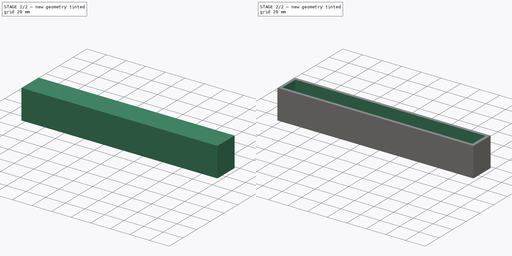
[diagram: build sequence overview — one tinted view per stage of 2, left to right]
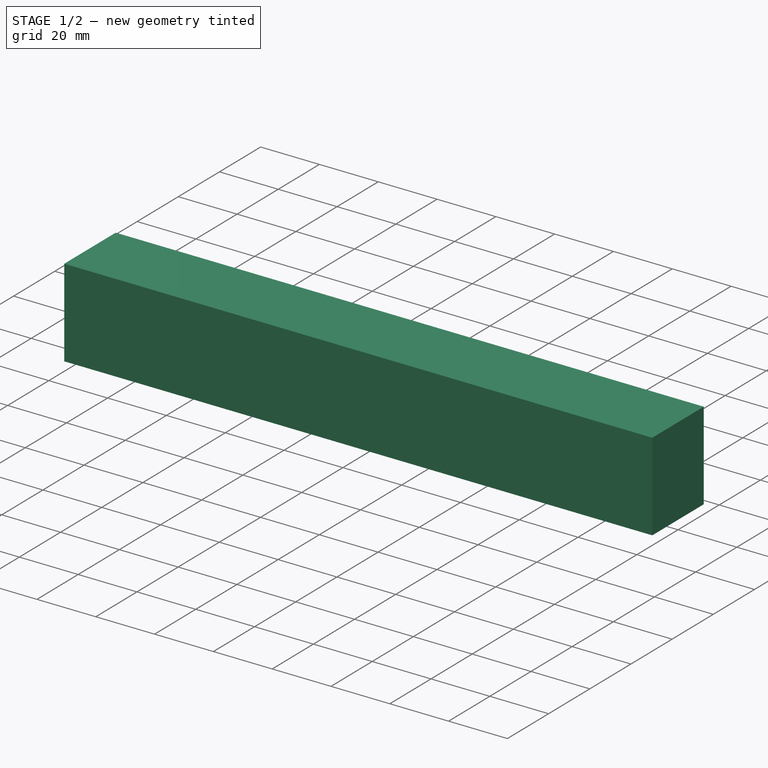
[diagram: stage 1 of 2 — iso view after this stage's code; geometry added in this stage tinted green]
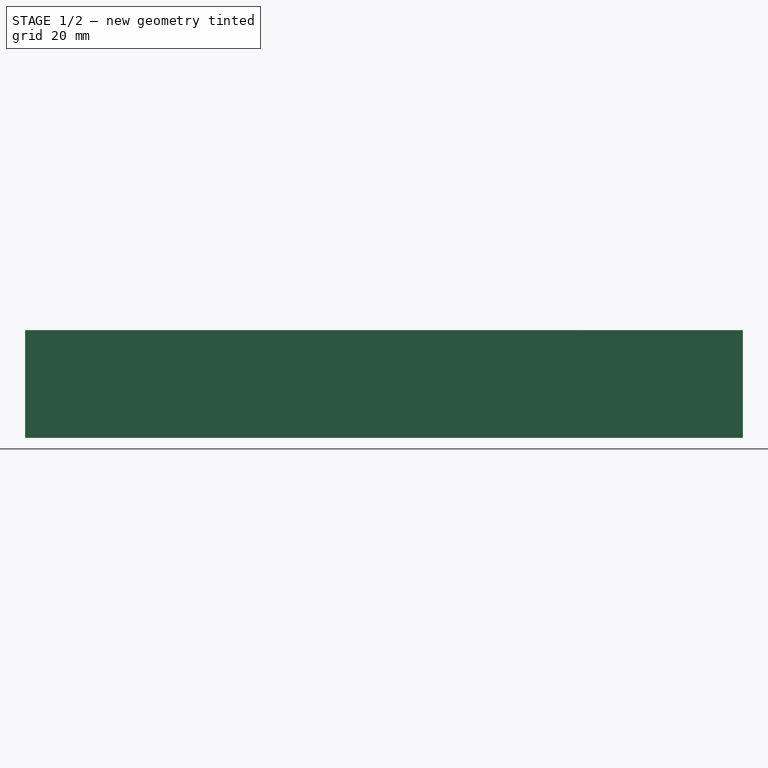
[diagram: stage 1 of 2 — front view after this stage's code; geometry added in this stage tinted green]
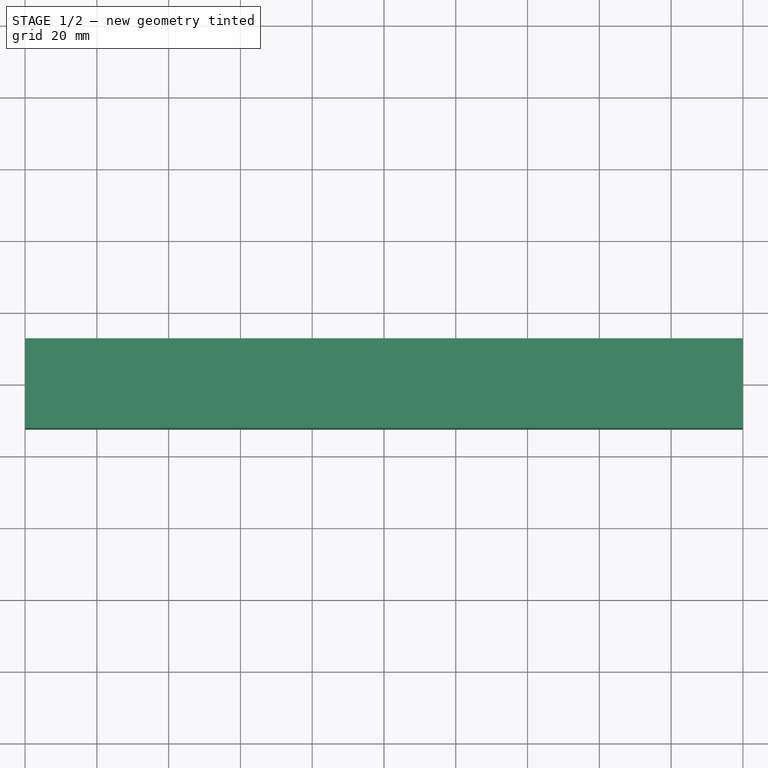
[diagram: stage 1 of 2 — top view after this stage's code; geometry added in this stage tinted green]
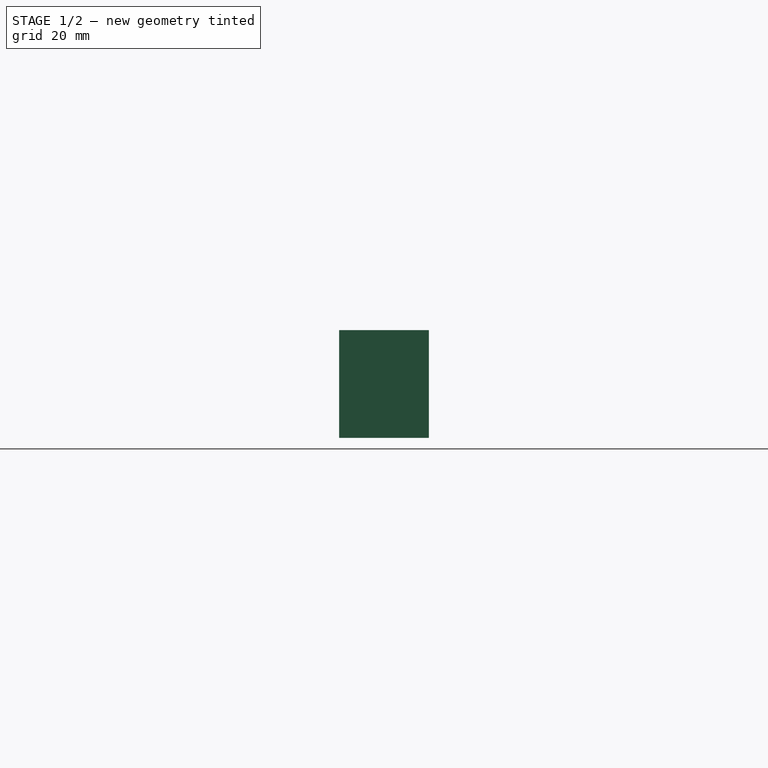
[diagram: stage 1 of 2 — right view after this stage's code; geometry added in this stage tinted green]
FCSTD DOCUMENT  (FreeCAD 0.21R33771 (Git))
Label: parameterDemo
License: All rights reserved
LicenseURL: http://en.wikipedia.org/wiki/All_rights_reserved
objects: Sketcher::SketchObject×2, Spreadsheet::Sheet×1, PartDesign::Pad×1, PartDesign::Plane×1, PartDesign::Pocket×1, PartDesign::Body×1
note: 8 computed .brp shape members not serialized (recipe doc carries the construction recipe); baked Part::Feature solids carry a one-line shape summary decoded from their .brp

FEATURE [Spreadsheet::Sheet] Spreadsheet  label="ss"
  cells = A2='boxLen; B2(boxLen)=200; A3='boxWid; B3(boxWid)=25; A4='boxHt; B4(boxHt)=30; A5='wallThk; B5(wallThk)=3; A6='baseThk; B6(baseThk)=4
FEATURE [Sketcher::SketchObject] Sketch
  FullyConstrained = true
  MapMode = 5
  Support = -> [XY_Plane]
  expr: Constraints[10] = <<ss>>.boxWid
  expr: Constraints[9] = <<ss>>.boxLen
  sketch-geometry (4):
    g0: LineSegment StartX=-100 StartY=12.5 StartZ=0 EndX=100 EndY=12.5 EndZ=0
    g1: LineSegment StartX=100 StartY=12.5 StartZ=0 EndX=100 EndY=-12.5 EndZ=0
    g2: LineSegment StartX=100 StartY=-12.5 StartZ=0 EndX=-100 EndY=-12.5 EndZ=0
    g3: LineSegment StartX=-100 StartY=-12.5 StartZ=0 EndX=-100 EndY=12.5 EndZ=0
  constraints (11):
    c: Coincident(g0,g1)
    c: Coincident(g1,g2)
    c: Coincident(g2,g3)
    c: Coincident(g3,g0)
    c: Horizontal(g0)
    c: Horizontal(g2)
    c: Vertical(g1)
    c: Vertical(g3)
    c: Symmetric(g0,g2,g-1)
    c: Distance(g0) = 200
    c: Distance(g3) = 25
FEATURE [PartDesign::Pad] Pad
  Direction = (0,0,1)
  Length = 30
  Length2 = 10
  Profile = -> Sketch
  ReferenceAxis = -> Sketch [N_Axis]
  Type = 0
  expr: Length = <<ss>>.boxHt
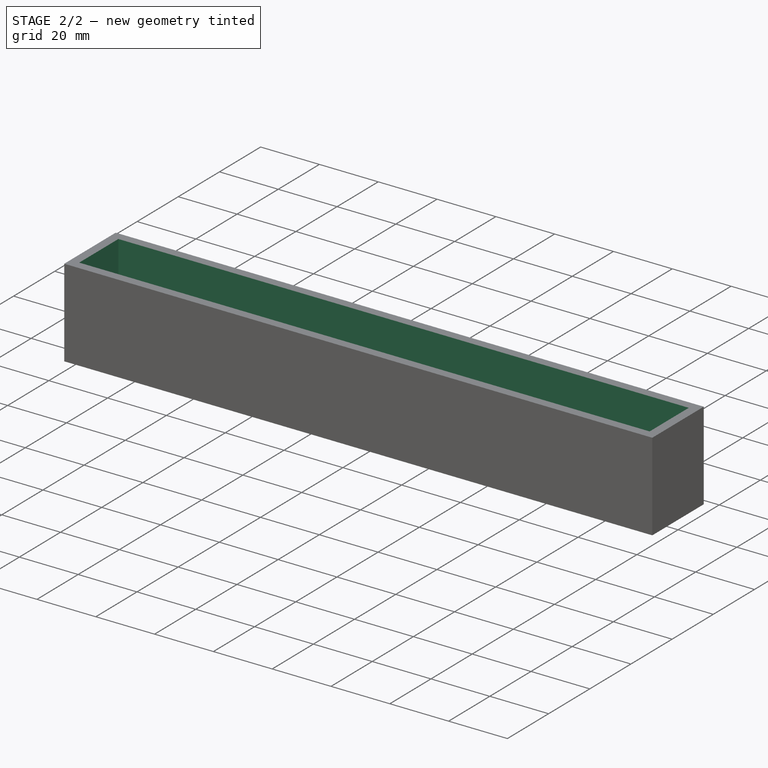
[diagram: stage 2 of 2 — iso view after this stage's code; geometry added in this stage tinted green]
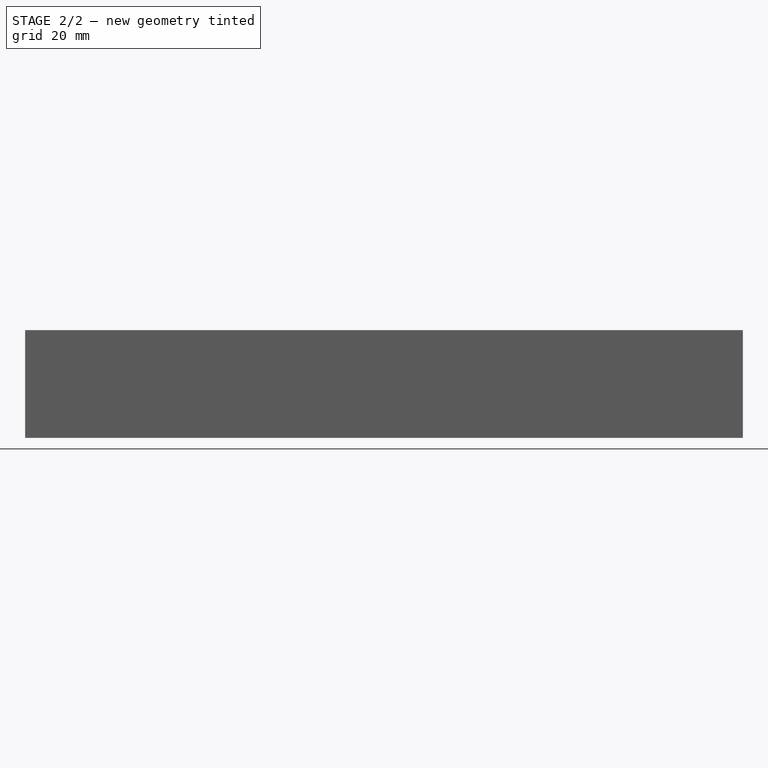
[diagram: stage 2 of 2 — front view after this stage's code; geometry added in this stage tinted green]
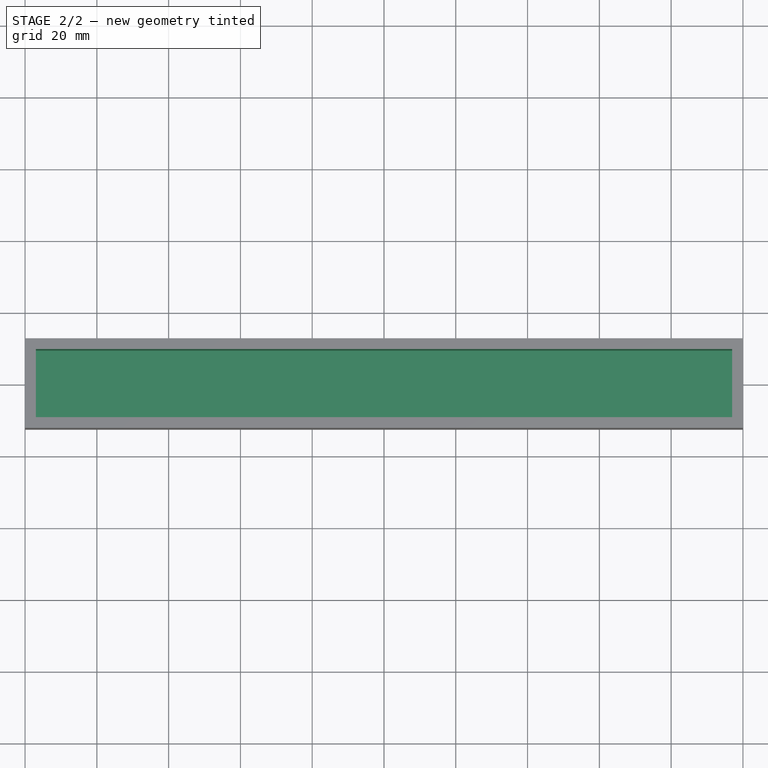
[diagram: stage 2 of 2 — top view after this stage's code; geometry added in this stage tinted green]
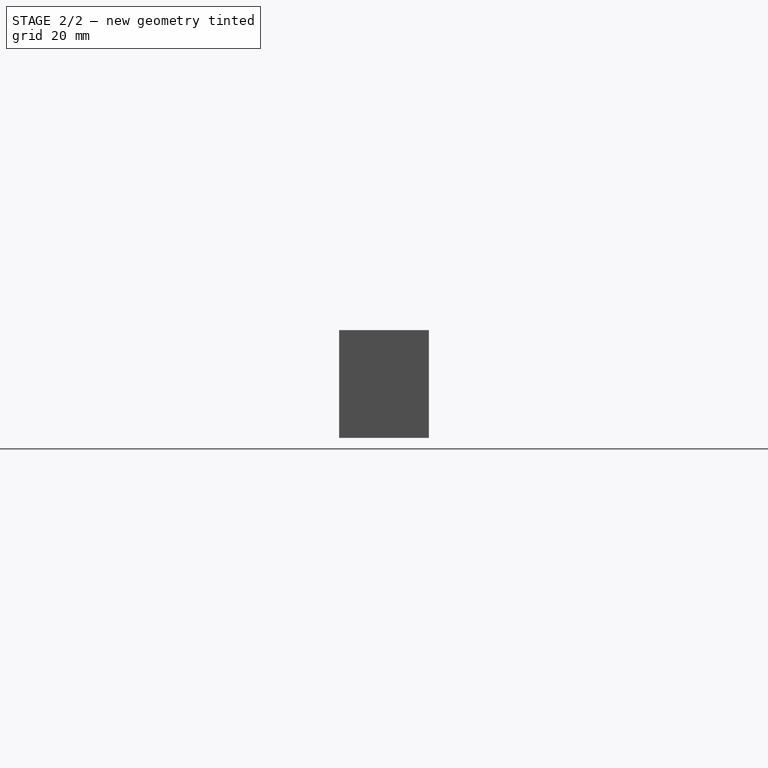
[diagram: stage 2 of 2 — right view after this stage's code; geometry added in this stage tinted green]
FEATURE [PartDesign::Plane] DatumPlane
  AttachmentOffset = pos=(0,0,30) rot=(0,0,1;0rad)
  Length = 220
  MapMode = 5
  Placement = pos=(0,0,30) rot=(0,0,1;0rad)
  ResizeMode = 0
  Support = -> [XY_Plane]
  Width = 70
  expr: .AttachmentOffset.Base.z = <<ss>>.boxHt
FEATURE [Sketcher::SketchObject] Sketch001
  FullyConstrained = true
  MapMode = 5
  Placement = pos=(0,0,30) rot=(0,0,1;0rad)
  Support = -> [DatumPlane]
  expr: Constraints[10] = <<ss>>.boxWid - <<ss>>.wallThk * 2
  expr: Constraints[9] = <<ss>>.boxLen - <<ss>>.wallThk * 2
  sketch-geometry (4):
    g0: LineSegment StartX=-97 StartY=9.5 StartZ=0 EndX=97 EndY=9.5 EndZ=0
    g1: LineSegment StartX=97 StartY=9.5 StartZ=0 EndX=97 EndY=-9.5 EndZ=0
    g2: LineSegment StartX=97 StartY=-9.5 StartZ=0 EndX=-97 EndY=-9.5 EndZ=0
    g3: LineSegment StartX=-97 StartY=-9.5 StartZ=0 EndX=-97 EndY=9.5 EndZ=0
  constraints (11):
    c: Coincident(g0,g1)
    c: Coincident(g1,g2)
    c: Coincident(g2,g3)
    c: Coincident(g3,g0)
    c: Horizontal(g0)
    c: Horizontal(g2)
    c: Vertical(g1)
    c: Vertical(g3)
    c: Symmetric(g0,g2,g-1)
    c: Distance(g0) = 194
    c: Distance(g3) = 19
FEATURE [PartDesign::Pocket] Pocket
  BaseFeature = -> Pad
  Direction = (0,0,-1)
  Length = 26
  Length2 = 5
  Profile = -> Sketch001
  ReferenceAxis = -> Sketch001 [N_Axis]
  Type = 0
  expr: Length = <<ss>>.boxHt - <<ss>>.baseThk
FEATURE [PartDesign::Body] Body
  Group = -> [Sketch,Pad,DatumPlane,Sketch001,Pocket]
  Origin = -> Origin
  Tip = -> Pocket
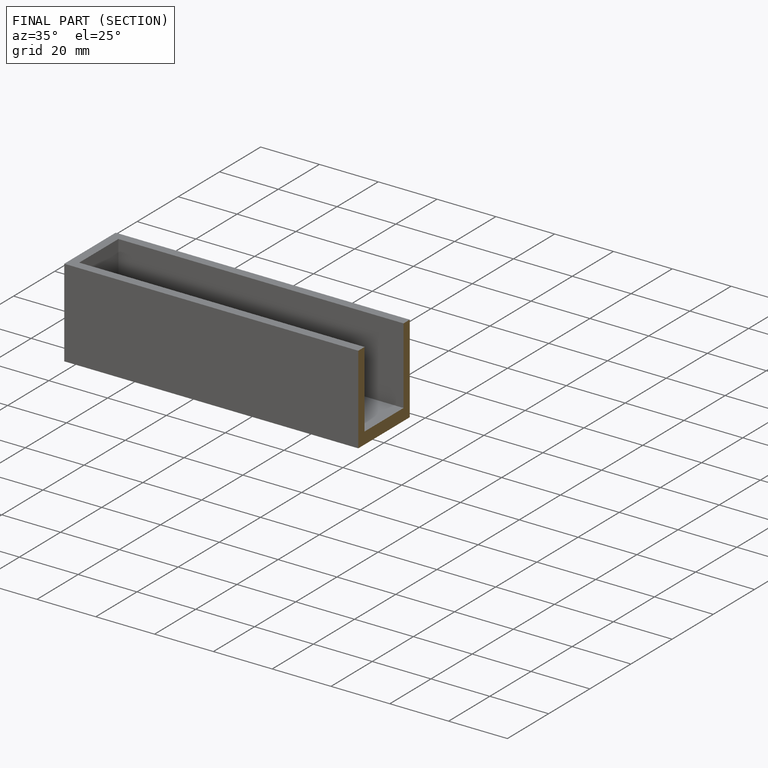
[diagram: finished part — half-section view (interior)]
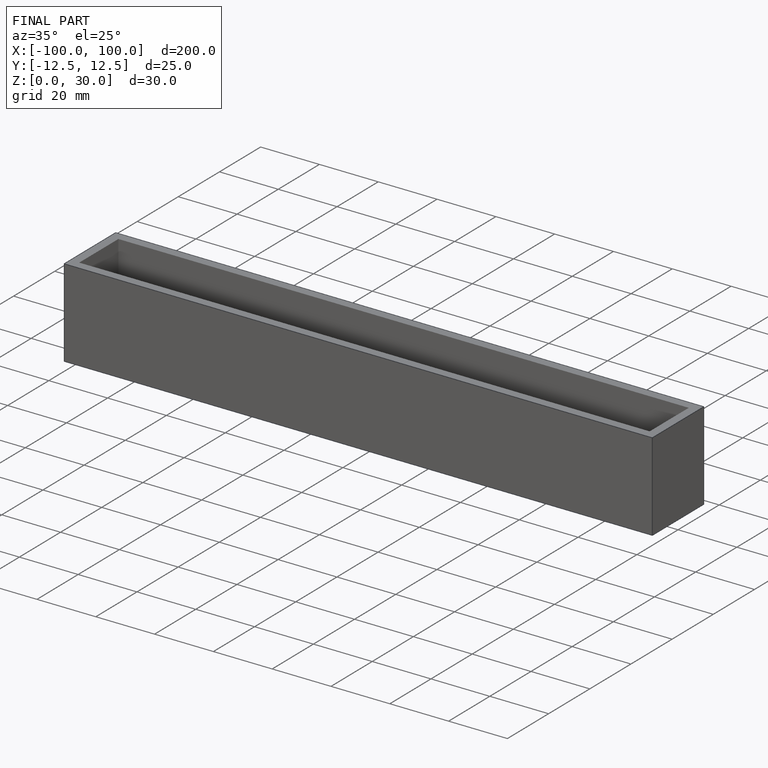
[diagram: finished part — iso view with bounding-box wireframe]
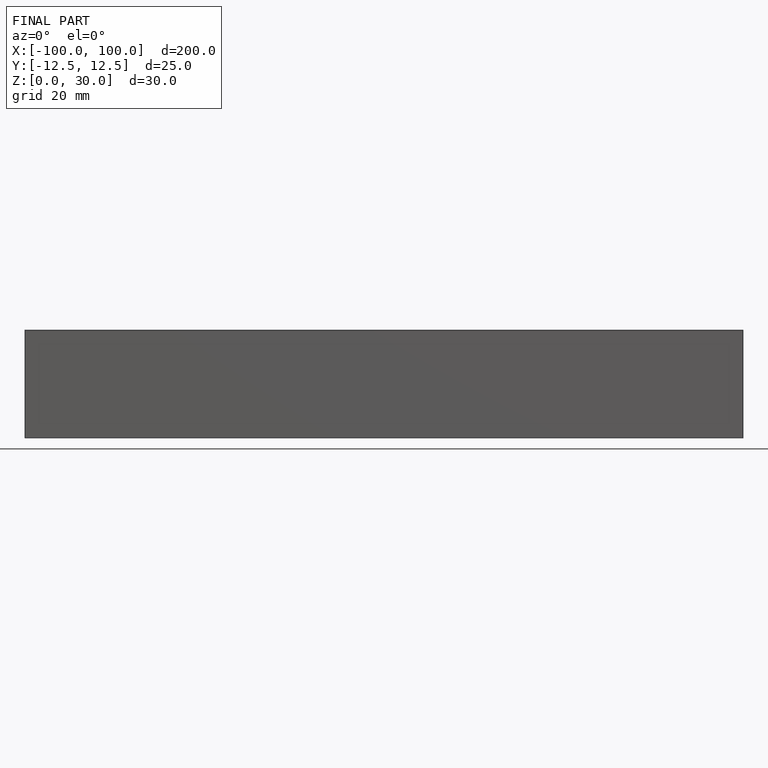
[diagram: finished part — front view with bounding-box wireframe]
